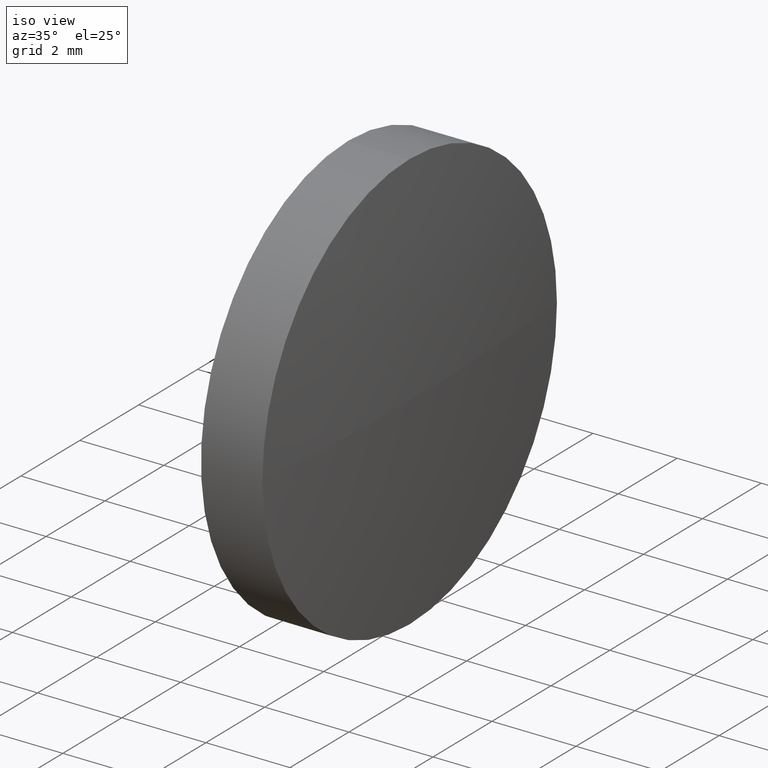
[diagram: clean part render]
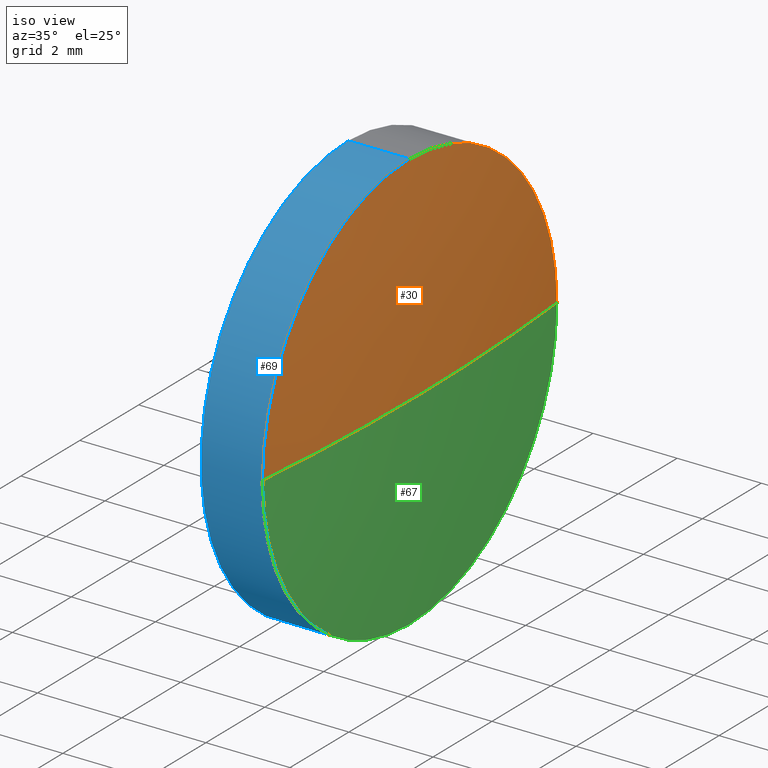
[diagram: same view with three faces highlighted in distinct colors, each labeled with its STEP entity id]
A machine part, iso view with three faces highlighted in distinct colors.
Their STEP definitions:

[orange] entity #30 — the highlighted spherical surface has radius 52.2033 mm.
#1 = AXIS2_PLACEMENT_3D ( 'NONE', #62, #94, #125 ) ;
#4 = DIRECTION ( 'NONE',  ( 0.0000000000000000000, 1.000000000000000000, 0.0000000000000000000 ) ) ;
#10 = VERTEX_POINT ( 'NONE', #74 ) ;
#12 = CARTESIAN_POINT ( 'NONE',  ( 372.4222076161130400, 168.3692814147027000, 0.0000000000000000000 ) ) ;
#13 = VERTEX_POINT ( 'NONE', #91 ) ;
#24 = CIRCLE ( 'NONE', #173, 52.20333333333326900 ) ;
#26 = AXIS2_PLACEMENT_3D ( 'NONE', #104, #163, #4 ) ;
#30 = ADVANCED_FACE ( 'NONE', ( #78 ), #121, .T. ) ;
#36 = CARTESIAN_POINT ( 'NONE',  ( 424.6255409494463000, 168.3692814147027000, 0.0000000000000000000 ) ) ;
#48 = EDGE_CURVE ( 'NONE', #106, #160, #24, .T. ) ;
#53 = CARTESIAN_POINT ( 'NONE',  ( 424.3855409494462900, 163.3692814147027000, -6.123233995736758400E-016 ) ) ;
#56 = CIRCLE ( 'NONE', #1, 5.000000000000004400 ) ;
#59 = AXIS2_PLACEMENT_3D ( 'NONE', #158, #113, #114 ) ;
#60 = EDGE_CURVE ( 'NONE', #13, #10, #56, .T. ) ;
#62 = CARTESIAN_POINT ( 'NONE',  ( 424.3855409494462900, 168.3692814147028700, 0.0000000000000000000 ) ) ;
#68 = ORIENTED_EDGE ( 'NONE', *, *, #103, .T. ) ;
#74 = CARTESIAN_POINT ( 'NONE',  ( 424.3855409494462900, 173.3692814147028700, 0.0000000000000000000 ) ) ;
#77 = AXIS2_PLACEMENT_3D ( 'NONE', #12, #108, #79 ) ;
#78 = FACE_OUTER_BOUND ( 'NONE', #88, .T. ) ;
#79 = DIRECTION ( 'NONE',  ( 1.000000000000000000, 0.0000000000000000000, 0.0000000000000000000 ) ) ;
#88 = EDGE_LOOP ( 'NONE', ( #115, #68, #181, #90 ) ) ;
#89 = CIRCLE ( 'NONE', #59, 5.000000000000004400 ) ;
#90 = ORIENTED_EDGE ( 'NONE', *, *, #179, .F. ) ;
#91 = CARTESIAN_POINT ( 'NONE',  ( 424.3855409494462900, 168.3692814147028700, 5.000000000000004400 ) ) ;
#94 = DIRECTION ( 'NONE',  ( -1.000000000000000000, -0.0000000000000000000, -0.0000000000000000000 ) ) ;
#103 = EDGE_CURVE ( 'NONE', #106, #10, #161, .T. ) ;
#104 = CARTESIAN_POINT ( 'NONE',  ( 372.4222076161130400, 168.3692814147027000, 0.0000000000000000000 ) ) ;
#106 = VERTEX_POINT ( 'NONE', #36 ) ;
#108 = DIRECTION ( 'NONE',  ( -0.0000000000000000000, 0.0000000000000000000, 1.000000000000000000 ) ) ;
#109 = CARTESIAN_POINT ( 'NONE',  ( 372.4222076161130400, 168.3692814147027000, 0.0000000000000000000 ) ) ;
#113 = DIRECTION ( 'NONE',  ( -1.000000000000000000, -0.0000000000000000000, -0.0000000000000000000 ) ) ;
#114 = DIRECTION ( 'NONE',  ( 0.0000000000000000000, 0.0000000000000000000, 1.000000000000000000 ) ) ;
#115 = ORIENTED_EDGE ( 'NONE', *, *, #48, .F. ) ;
#121 = SPHERICAL_SURFACE ( 'NONE', #26, 52.20333333333326900 ) ;
#125 = DIRECTION ( 'NONE',  ( 0.0000000000000000000, 0.0000000000000000000, 1.000000000000000000 ) ) ;
#127 = DIRECTION ( 'NONE',  ( 0.0000000000000000000, 1.000000000000000000, 1.224646799147353200E-016 ) ) ;
#154 = DIRECTION ( 'NONE',  ( 0.0000000000000000000, 1.224646799147353200E-016, -1.000000000000000000 ) ) ;
#158 = CARTESIAN_POINT ( 'NONE',  ( 424.3855409494462900, 168.3692814147028700, 0.0000000000000000000 ) ) ;
#160 = VERTEX_POINT ( 'NONE', #53 ) ;
#161 = CIRCLE ( 'NONE', #77, 52.20333333333326900 ) ;
#163 = DIRECTION ( 'NONE',  ( -0.0000000000000000000, 0.0000000000000000000, -1.000000000000000000 ) ) ;
#173 = AXIS2_PLACEMENT_3D ( 'NONE', #109, #154, #127 ) ;
#179 = EDGE_CURVE ( 'NONE', #160, #13, #89, .T. ) ;
#181 = ORIENTED_EDGE ( 'NONE', *, *, #60, .F. ) ;

[blue] entity #69 — the highlighted cylindrical surface (partial cylindrical patch) has radius 5 mm, axis along (-1, -0, -0).
#2 = ORIENTED_EDGE ( 'NONE', *, *, #179, .T. ) ;
#3 = CARTESIAN_POINT ( 'NONE',  ( 421.9839904776718500, 168.3692814147028700, 5.000000000000004400 ) ) ;
#5 = EDGE_CURVE ( 'NONE', #13, #111, #172, .T. ) ;
#8 = LINE ( 'NONE', #20, #133 ) ;
#13 = VERTEX_POINT ( 'NONE', #91 ) ;
#15 = CIRCLE ( 'NONE', #58, 5.000000000000004400 ) ;
#16 = EDGE_CURVE ( 'NONE', #71, #160, #50, .T. ) ;
#20 = CARTESIAN_POINT ( 'NONE',  ( 421.9839904776718500, 168.3692814147028700, -5.000000000000004400 ) ) ;
#34 = ORIENTED_EDGE ( 'NONE', *, *, #16, .T. ) ;
#37 = CARTESIAN_POINT ( 'NONE',  ( 422.9255409494463700, 168.3692814147028700, -5.000000000000004400 ) ) ;
#42 = VECTOR ( 'NONE', #145, 1000.000000000000000 ) ;
#46 = EDGE_CURVE ( 'NONE', #71, #176, #8, .T. ) ;
#47 = DIRECTION ( 'NONE',  ( -1.000000000000000000, -0.0000000000000000000, -0.0000000000000000000 ) ) ;
#50 = CIRCLE ( 'NONE', #126, 5.000000000000004400 ) ;
#51 = DIRECTION ( 'NONE',  ( -1.000000000000000000, -0.0000000000000000000, -0.0000000000000000000 ) ) ;
#52 = CARTESIAN_POINT ( 'NONE',  ( 421.9839904776718500, 168.3692814147028700, 0.0000000000000000000 ) ) ;
#53 = CARTESIAN_POINT ( 'NONE',  ( 424.3855409494462900, 163.3692814147027000, -6.123233995736758400E-016 ) ) ;
#58 = AXIS2_PLACEMENT_3D ( 'NONE', #107, #166, #139 ) ;
#59 = AXIS2_PLACEMENT_3D ( 'NONE', #158, #113, #114 ) ;
#63 = DIRECTION ( 'NONE',  ( 0.0000000000000000000, 0.0000000000000000000, 1.000000000000000000 ) ) ;
#65 = AXIS2_PLACEMENT_3D ( 'NONE', #52, #51, #63 ) ;
#69 = ADVANCED_FACE ( 'NONE', ( #164 ), #87, .T. ) ;
#71 = VERTEX_POINT ( 'NONE', #136 ) ;
#87 = CYLINDRICAL_SURFACE ( 'NONE', #65, 5.000000000000004400 ) ;
#89 = CIRCLE ( 'NONE', #59, 5.000000000000004400 ) ;
#91 = CARTESIAN_POINT ( 'NONE',  ( 424.3855409494462900, 168.3692814147028700, 5.000000000000004400 ) ) ;
#93 = DIRECTION ( 'NONE',  ( -1.000000000000000000, -0.0000000000000000000, -0.0000000000000000000 ) ) ;
#95 = EDGE_CURVE ( 'NONE', #176, #111, #15, .T. ) ;
#107 = CARTESIAN_POINT ( 'NONE',  ( 422.9255409494463700, 168.3692814147028700, 0.0000000000000000000 ) ) ;
#111 = VERTEX_POINT ( 'NONE', #157 ) ;
#113 = DIRECTION ( 'NONE',  ( -1.000000000000000000, -0.0000000000000000000, -0.0000000000000000000 ) ) ;
#114 = DIRECTION ( 'NONE',  ( 0.0000000000000000000, 0.0000000000000000000, 1.000000000000000000 ) ) ;
#118 = ORIENTED_EDGE ( 'NONE', *, *, #46, .F. ) ;
#126 = AXIS2_PLACEMENT_3D ( 'NONE', #134, #47, #152 ) ;
#133 = VECTOR ( 'NONE', #93, 1000.000000000000000 ) ;
#134 = CARTESIAN_POINT ( 'NONE',  ( 424.3855409494462900, 168.3692814147028700, 0.0000000000000000000 ) ) ;
#135 = ORIENTED_EDGE ( 'NONE', *, *, #5, .T. ) ;
#136 = CARTESIAN_POINT ( 'NONE',  ( 424.3855409494462900, 168.3692814147028700, -5.000000000000004400 ) ) ;
#139 = DIRECTION ( 'NONE',  ( 0.0000000000000000000, 0.0000000000000000000, 1.000000000000000000 ) ) ;
#144 = EDGE_LOOP ( 'NONE', ( #118, #34, #2, #135, #169 ) ) ;
#145 = DIRECTION ( 'NONE',  ( -1.000000000000000000, -0.0000000000000000000, -0.0000000000000000000 ) ) ;
#152 = DIRECTION ( 'NONE',  ( 0.0000000000000000000, 0.0000000000000000000, 1.000000000000000000 ) ) ;
#157 = CARTESIAN_POINT ( 'NONE',  ( 422.9255409494463700, 168.3692814147028700, 5.000000000000004400 ) ) ;
#158 = CARTESIAN_POINT ( 'NONE',  ( 424.3855409494462900, 168.3692814147028700, 0.0000000000000000000 ) ) ;
#160 = VERTEX_POINT ( 'NONE', #53 ) ;
#164 = FACE_OUTER_BOUND ( 'NONE', #144, .T. ) ;
#166 = DIRECTION ( 'NONE',  ( -1.000000000000000000, -0.0000000000000000000, -0.0000000000000000000 ) ) ;
#169 = ORIENTED_EDGE ( 'NONE', *, *, #95, .F. ) ;
#172 = LINE ( 'NONE', #3, #42 ) ;
#176 = VERTEX_POINT ( 'NONE', #37 ) ;
#179 = EDGE_CURVE ( 'NONE', #160, #13, #89, .T. ) ;

[green] entity #67 — the highlighted spherical surface has radius 52.2033 mm.
#10 = VERTEX_POINT ( 'NONE', #74 ) ;
#11 = DIRECTION ( 'NONE',  ( -1.000000000000000000, -0.0000000000000000000, -0.0000000000000000000 ) ) ;
#12 = CARTESIAN_POINT ( 'NONE',  ( 372.4222076161130400, 168.3692814147027000, 0.0000000000000000000 ) ) ;
#16 = EDGE_CURVE ( 'NONE', #71, #160, #50, .T. ) ;
#18 = AXIS2_PLACEMENT_3D ( 'NONE', #124, #11, #165 ) ;
#19 = ORIENTED_EDGE ( 'NONE', *, *, #16, .F. ) ;
#21 = CARTESIAN_POINT ( 'NONE',  ( 372.4222076161130400, 168.3692814147027000, 0.0000000000000000000 ) ) ;
#24 = CIRCLE ( 'NONE', #173, 52.20333333333326900 ) ;
#27 = CIRCLE ( 'NONE', #18, 5.000000000000004400 ) ;
#31 = FACE_OUTER_BOUND ( 'NONE', #174, .T. ) ;
#32 = AXIS2_PLACEMENT_3D ( 'NONE', #21, #138, #141 ) ;
#36 = CARTESIAN_POINT ( 'NONE',  ( 424.6255409494463000, 168.3692814147027000, 0.0000000000000000000 ) ) ;
#44 = ORIENTED_EDGE ( 'NONE', *, *, #103, .F. ) ;
#47 = DIRECTION ( 'NONE',  ( -1.000000000000000000, -0.0000000000000000000, -0.0000000000000000000 ) ) ;
#48 = EDGE_CURVE ( 'NONE', #106, #160, #24, .T. ) ;
#50 = CIRCLE ( 'NONE', #126, 5.000000000000004400 ) ;
#53 = CARTESIAN_POINT ( 'NONE',  ( 424.3855409494462900, 163.3692814147027000, -6.123233995736758400E-016 ) ) ;
#55 = ORIENTED_EDGE ( 'NONE', *, *, #75, .F. ) ;
#67 = ADVANCED_FACE ( 'NONE', ( #31 ), #120, .T. ) ;
#71 = VERTEX_POINT ( 'NONE', #136 ) ;
#74 = CARTESIAN_POINT ( 'NONE',  ( 424.3855409494462900, 173.3692814147028700, 0.0000000000000000000 ) ) ;
#75 = EDGE_CURVE ( 'NONE', #10, #71, #27, .T. ) ;
#77 = AXIS2_PLACEMENT_3D ( 'NONE', #12, #108, #79 ) ;
#79 = DIRECTION ( 'NONE',  ( 1.000000000000000000, 0.0000000000000000000, 0.0000000000000000000 ) ) ;
#103 = EDGE_CURVE ( 'NONE', #106, #10, #161, .T. ) ;
#106 = VERTEX_POINT ( 'NONE', #36 ) ;
#108 = DIRECTION ( 'NONE',  ( -0.0000000000000000000, 0.0000000000000000000, 1.000000000000000000 ) ) ;
#109 = CARTESIAN_POINT ( 'NONE',  ( 372.4222076161130400, 168.3692814147027000, 0.0000000000000000000 ) ) ;
#120 = SPHERICAL_SURFACE ( 'NONE', #32, 52.20333333333326900 ) ;
#124 = CARTESIAN_POINT ( 'NONE',  ( 424.3855409494462900, 168.3692814147028700, 0.0000000000000000000 ) ) ;
#126 = AXIS2_PLACEMENT_3D ( 'NONE', #134, #47, #152 ) ;
#127 = DIRECTION ( 'NONE',  ( 0.0000000000000000000, 1.000000000000000000, 1.224646799147353200E-016 ) ) ;
#134 = CARTESIAN_POINT ( 'NONE',  ( 424.3855409494462900, 168.3692814147028700, 0.0000000000000000000 ) ) ;
#136 = CARTESIAN_POINT ( 'NONE',  ( 424.3855409494462900, 168.3692814147028700, -5.000000000000004400 ) ) ;
#138 = DIRECTION ( 'NONE',  ( -0.0000000000000000000, 0.0000000000000000000, -1.000000000000000000 ) ) ;
#141 = DIRECTION ( 'NONE',  ( 0.0000000000000000000, 1.000000000000000000, 0.0000000000000000000 ) ) ;
#152 = DIRECTION ( 'NONE',  ( 0.0000000000000000000, 0.0000000000000000000, 1.000000000000000000 ) ) ;
#154 = DIRECTION ( 'NONE',  ( 0.0000000000000000000, 1.224646799147353200E-016, -1.000000000000000000 ) ) ;
#160 = VERTEX_POINT ( 'NONE', #53 ) ;
#161 = CIRCLE ( 'NONE', #77, 52.20333333333326900 ) ;
#165 = DIRECTION ( 'NONE',  ( 0.0000000000000000000, 0.0000000000000000000, 1.000000000000000000 ) ) ;
#171 = ORIENTED_EDGE ( 'NONE', *, *, #48, .T. ) ;
#173 = AXIS2_PLACEMENT_3D ( 'NONE', #109, #154, #127 ) ;
#174 = EDGE_LOOP ( 'NONE', ( #44, #171, #19, #55 ) ) ;